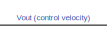
[diagram: root canvas - part 1/2, top right region]
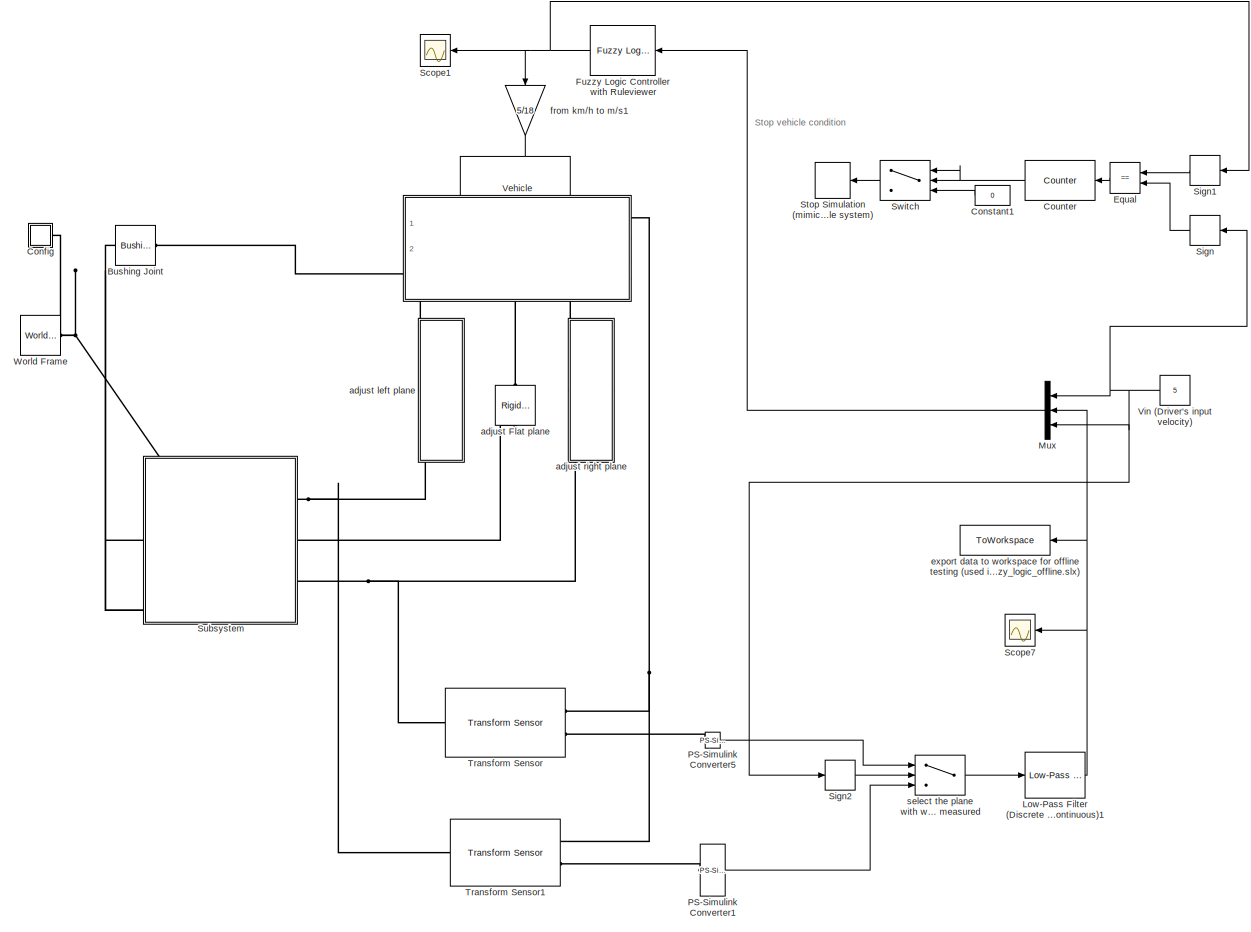
[diagram: root canvas - part 2/2, most of the canvas]
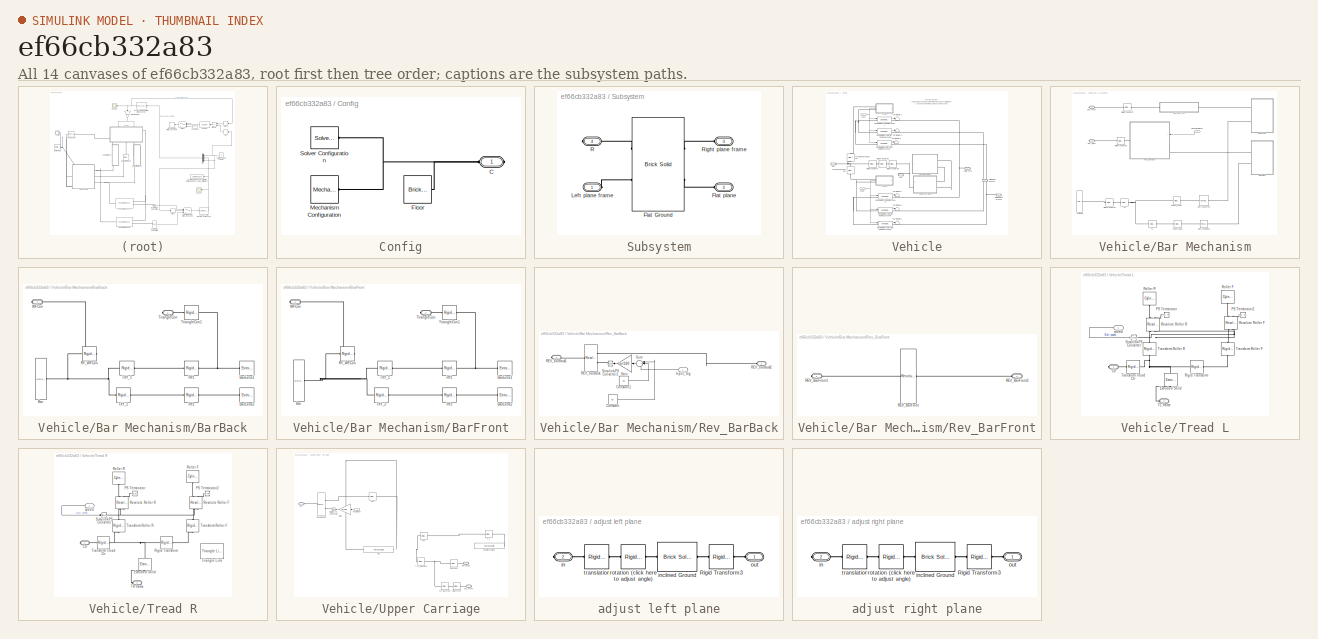
[diagram: thumbnail index - all 14 canvases of the model, root first then tree order]
MODEL slx_ef66cb332a83
KIND model
CONFIG AbsTol = auto
CONFIG EnableMultiTasking = off
CONFIG FixedStep = 0.2
CONFIG MaxStep = auto
CONFIG MinStep = auto
CONFIG PreLoadFcn = sm_tread_drive_param\n\nfuzzy
CONFIG RelTol = 1e-3
CONFIG SampleTimeConstraint = Unconstrained
CONFIG SolverName = ode23s
CONFIG StartTime = 0.0
CONFIG StopTime = 25
BLOCK [Reference] Bushing Joint  REF=sm_lib/Joints/Bushing Joint
  Ports = [0, 0, 0, 0, 0, 1, 1]
  SourceBlock = sm_lib/Joints/Bushing Joint
  SourceProductBaseCode = MS
  SourceType = Bushing Joint
BLOCK [SubSystem] Config
  NameLocation = top
  Ports = [0, 0, 0, 0, 0, 0, 1]
  RequestExecContextInheritance = off
BLOCK [PMIOPort] Config/C
  NameLocation = top
  Side = Right
BLOCK [Reference] Config/Floor  REF=sm_lib/Body Elements/Brick Solid
  Commented = on
  Ports = [0, 0, 0, 0, 0, 1, 1]
  SourceBlock = sm_lib/Body Elements/Brick Solid
  SourceProductBaseCode = MS
  SourceType = Brick Solid
BLOCK [Reference] Config/Mechanism Configuration  REF=sm_lib/Utilities/Mechanism
Configuration
  Ports = [0, 0, 0, 0, 0, 0, 1]
  SourceBlock = sm_lib/Utilities/Mechanism\nConfiguration
  SourceProductBaseCode = MS
  SourceType = Mechanism\nConfiguration
BLOCK [Reference] Config/Solver Configuration  REF=nesl_utility/Solver
Configuration
  NameLocation = top
  Ports = [0, 0, 0, 0, 0, 0, 1]
  SourceBlock = nesl_utility/Solver\nConfiguration
  SourceProductBaseCode = SS
  SourceType = Solver\nConfiguration
BLOCK [Constant] Constant1
  Value = 0
BLOCK [Reference] Counter  REF=dspswit3/Counter
  Ports = [1, 1]
  SourceBlock = dspswit3/Counter
  SourceProductBaseCode = DS
  SourceType = Counter
BLOCK [RelationalOperator] Equal
  InputSameDT = off
  Operator = ==
  OutDataTypeStr = boolean
  Ports = [2, 1]
  RndMeth = Simplest
BLOCK [Reference] Fuzzy Logic Controller with Ruleviewer  REF=fuzblock/Fuzzy Logic   (lib defined in mdl_858b3b3e7478)
Controller 
with Ruleviewer
  Ports = [1, 1]
  SourceBlock = fuzblock/Fuzzy Logic \nController \nwith Ruleviewer
  SourceProductBaseCode = FL
  SourceType = Fuzzy Inference System
BLOCK [Reference] Low-Pass Filter (Discrete or Continuous)1  REF=eeGeneralControl/Low-Pass Filter
(Discrete or Continuous)
  Ports = [1, 1]
  SourceBlock = eeGeneralControl/Low-Pass Filter\n(Discrete or Continuous)
  SourceProductBaseCode = PS
  SourceType = Low-Pass Filter (Discrete or Continuous)
BLOCK [Mux] Mux
  DisplayOption = bar
  Inputs = 3
  Ports = [3, 1]
BLOCK [Reference] PS-Simulink Converter1  REF=nesl_utility/PS-Simulink
Converter
  Ports = [0, 1, 0, 0, 0, 1]
  SourceBlock = nesl_utility/PS-Simulink\nConverter
  SourceProductBaseCode = SS
  SourceType = PS-Simulink\nConverter
BLOCK [Reference] PS-Simulink Converter5  REF=nesl_utility/PS-Simulink
Converter
  Ports = [0, 1, 0, 0, 0, 1]
  SourceBlock = nesl_utility/PS-Simulink\nConverter
  SourceProductBaseCode = SS
  SourceType = PS-Simulink\nConverter
BLOCK [Scope] Scope1
  Floating = off
  NumInputPorts = 1
  Ports = [1]
  ScopeSpecificationString = Simulink.scopes.TimeScopeBlockCfg('CurrentConfiguration', extmgr.ConfigurationSet(extmgr.Configuration('Core','General UI',true),extmgr.Configuration('Core','Source UI',true),extmgr.Configuration('Sources','WiredSimulink',true,'DataLoggingVariableName','ScopeData1'),extmgr.Configuration('Visuals','Time Domain',true,'SerializedDisplays',{struct('MinYLimReal','-5.66659','MaxYLimReal','5.66666','YLab...<+1755ch>
BLOCK [Scope] Scope7
  Floating = off
  NumInputPorts = 1
  Ports = [1]
  ScopeSpecificationString = Simulink.scopes.TimeScopeBlockCfg('CurrentConfiguration', extmgr.ConfigurationSet(extmgr.Configuration('Core','General UI',true),extmgr.Configuration('Core','Source UI',true),extmgr.Configuration('Sources','WiredSimulink',true,'DataLoggingVariableName','ScopeData6'),extmgr.Configuration('Visuals','Time Domain',true,'SerializedDisplays',{struct('MinYLimReal','-0.06153','MaxYLimReal','0.06025','YLab...<+1760ch>
BLOCK [Signum] Sign
BLOCK [Signum] Sign1
BLOCK [Signum] Sign2
BLOCK [Stop] Stop Simulation (mimics the stop//halt of the whole system)
BLOCK [SubSystem] Subsystem
  Ports = [0, 0, 0, 0, 0, 3, 1]
  RequestExecContextInheritance = off
BLOCK [Reference] Subsystem/Flat Ground  REF=sm_lib/Body Elements/Brick Solid
  NameLocation = top
  Ports = [0, 0, 0, 0, 0, 2, 2]
  SourceBlock = sm_lib/Body Elements/Brick Solid
  SourceProductBaseCode = MS
  SourceType = Brick Solid
BLOCK [PMIOPort] Subsystem/Flat plane
  Port = 2
  Side = Left
BLOCK [PMIOPort] Subsystem/Left plane frame
  Side = Left
BLOCK [PMIOPort] Subsystem/R
  Port = 4
  Side = Right
BLOCK [PMIOPort] Subsystem/Right plane frame
  Port = 3
  Side = Left
BLOCK [Switch] Switch
  Criteria = u2 > Threshold
  InputSameDT = off
  SaturateOnIntegerOverflow = off
  Threshold = 1
  ZeroCross = off
BLOCK [Reference] Transform Sensor  REF=sm_lib/Frames and
Transforms/Transform
Sensor
  Ports = [0, 0, 0, 0, 0, 1, 2]
  SourceBlock = sm_lib/Frames and\nTransforms/Transform\nSensor
  SourceProductBaseCode = MS
  SourceType = Transform\nSensor
BLOCK [Reference] Transform Sensor1  REF=sm_lib/Frames and
Transforms/Transform
Sensor
  Ports = [0, 0, 0, 0, 0, 1, 2]
  SourceBlock = sm_lib/Frames and\nTransforms/Transform\nSensor
  SourceProductBaseCode = MS
  SourceType = Transform\nSensor
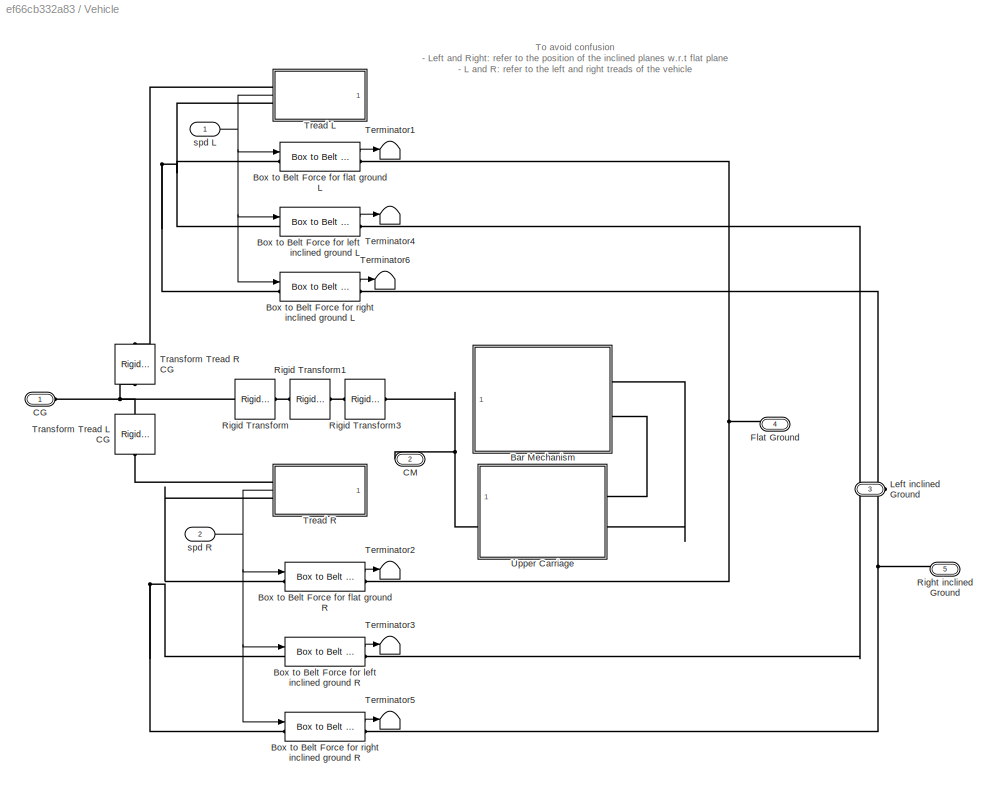
BLOCK [SubSystem] Vehicle
  NameLocation = top
  PortSchema = {"entries":[{"content":{"sides":[{"content":{"connectorIds":["LConn1"]},"type":"ConnectorPlacement.EquallySpacedRectSide","uuid":"fabd707b-f59e-4d45-9dad-4545376ba824"},{"content":{"connectorIds":["RConn1"],"side":"RIGHT"},"type":"ConnectorPlacement.EquallySpacedRectSide","uuid":"43ada801-dfb5-4da2-9ab6-aa6db2d15a3d"},{"content":{"connectorIds":["In1","In2"],"side":"TOP"},"type":"ConnectorPlacemen...<+570ch>
  Ports = [2, 0, 0, 0, 0, 1, 4]
  RequestExecContextInheritance = off
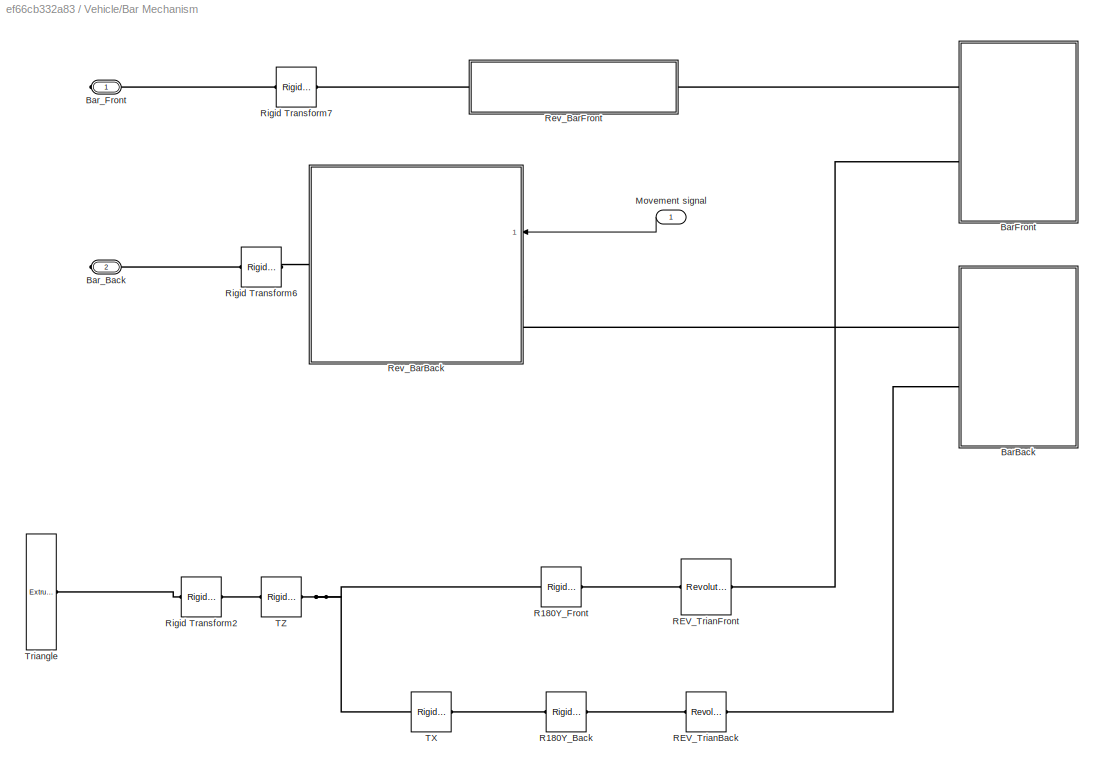
BLOCK [SubSystem] Vehicle/Bar Mechanism
  Ports = [1, 0, 0, 0, 0, 0, 2]
  RequestExecContextInheritance = off
BLOCK [SubSystem] Vehicle/Bar Mechanism/BarBack
  NameLocation = top
  Ports = [0, 0, 0, 0, 0, 0, 2]
  RequestExecContextInheritance = off
BLOCK [Reference] Vehicle/Bar Mechanism/BarBack/Bar  REF=sm_lib/Body Elements/Extruded Solid
  Ports = [0, 0, 0, 0, 0, 0, 1]
  SourceBlock = sm_lib/Body Elements/Extruded Solid
  SourceProductBaseCode = MS
  SourceType = Extruded Solid
BLOCK [Reference] Vehicle/Bar Mechanism/BarBack/BarExtra1  REF=sm_lib/Body Elements/Extruded Solid
  NameLocation = top
  Ports = [0, 0, 0, 0, 0, 0, 1]
  SourceBlock = sm_lib/Body Elements/Extruded Solid
  SourceProductBaseCode = MS
  SourceType = Extruded Solid
BLOCK [Reference] Vehicle/Bar Mechanism/BarBack/BarExtra2  REF=sm_lib/Body Elements/Extruded Solid
  NameLocation = top
  Ports = [0, 0, 0, 0, 0, 0, 1]
  SourceBlock = sm_lib/Body Elements/Extruded Solid
  SourceProductBaseCode = MS
  SourceType = Extruded Solid
BLOCK [Reference] Vehicle/Bar Mechanism/BarBack/RY1  REF=sm_lib/Frames and
Transforms/Rigid
Transform
  NameLocation = top
  Ports = [0, 0, 0, 0, 0, 1, 1]
  SourceBlock = sm_lib/Frames and\nTransforms/Rigid\nTransform
  SourceProductBaseCode = MS
  SourceType = Rigid\nTransform
BLOCK [Reference] Vehicle/Bar Mechanism/BarBack/RY2  REF=sm_lib/Frames and
Transforms/Rigid
Transform
  NameLocation = top
  Ports = [0, 0, 0, 0, 0, 1, 1]
  SourceBlock = sm_lib/Frames and\nTransforms/Rigid\nTransform
  SourceProductBaseCode = MS
  SourceType = Rigid\nTransform
BLOCK [Reference] Vehicle/Bar Mechanism/BarBack/RY_WFCon  REF=sm_lib/Frames and
Transforms/Rigid
Transform
  Ports = [0, 0, 0, 0, 0, 1, 1]
  SourceBlock = sm_lib/Frames and\nTransforms/Rigid\nTransform
  SourceProductBaseCode = MS
  SourceType = Rigid\nTransform
BLOCK [Reference] Vehicle/Bar Mechanism/BarBack/TXY_1  REF=sm_lib/Frames and
Transforms/Rigid
Transform
  Ports = [0, 0, 0, 0, 0, 1, 1]
  SourceBlock = sm_lib/Frames and\nTransforms/Rigid\nTransform
  SourceProductBaseCode = MS
  SourceType = Rigid\nTransform
BLOCK [Reference] Vehicle/Bar Mechanism/BarBack/TXY_2  REF=sm_lib/Frames and
Transforms/Rigid
Transform
  Ports = [0, 0, 0, 0, 0, 1, 1]
  SourceBlock = sm_lib/Frames and\nTransforms/Rigid\nTransform
  SourceProductBaseCode = MS
  SourceType = Rigid\nTransform
BLOCK [PMIOPort] Vehicle/Bar Mechanism/BarBack/TriangleCon
  Port = 2
  Side = Right
BLOCK [Reference] Vehicle/Bar Mechanism/BarBack/TriangleCon1  REF=sm_lib/Frames and
Transforms/Rigid
Transform
  NameLocation = top
  Ports = [0, 0, 0, 0, 0, 1, 1]
  SourceBlock = sm_lib/Frames and\nTransforms/Rigid\nTransform
  SourceProductBaseCode = MS
  SourceType = Rigid\nTransform
BLOCK [PMIOPort] Vehicle/Bar Mechanism/BarBack/WFCon
  Side = Right
BLOCK [SubSystem] Vehicle/Bar Mechanism/BarFront
  NameLocation = top
  Ports = [0, 0, 0, 0, 0, 0, 2]
  RequestExecContextInheritance = off
BLOCK [Reference] Vehicle/Bar Mechanism/BarFront/Bar  REF=sm_lib/Body Elements/Extruded Solid
  Ports = [0, 0, 0, 0, 0, 0, 1]
  SourceBlock = sm_lib/Body Elements/Extruded Solid
  SourceProductBaseCode = MS
  SourceType = Extruded Solid
BLOCK [Reference] Vehicle/Bar Mechanism/BarFront/BarExtra1  REF=sm_lib/Body Elements/Extruded Solid
  NameLocation = top
  Ports = [0, 0, 0, 0, 0, 0, 1]
  SourceBlock = sm_lib/Body Elements/Extruded Solid
  SourceProductBaseCode = MS
  SourceType = Extruded Solid
BLOCK [Reference] Vehicle/Bar Mechanism/BarFront/BarExtra2  REF=sm_lib/Body Elements/Extruded Solid
  NameLocation = top
  Ports = [0, 0, 0, 0, 0, 0, 1]
  SourceBlock = sm_lib/Body Elements/Extruded Solid
  SourceProductBaseCode = MS
  SourceType = Extruded Solid
BLOCK [Reference] Vehicle/Bar Mechanism/BarFront/RY1  REF=sm_lib/Frames and
Transforms/Rigid
Transform
  NameLocation = top
  Ports = [0, 0, 0, 0, 0, 1, 1]
  SourceBlock = sm_lib/Frames and\nTransforms/Rigid\nTransform
  SourceProductBaseCode = MS
  SourceType = Rigid\nTransform
BLOCK [Reference] Vehicle/Bar Mechanism/BarFront/RY2  REF=sm_lib/Frames and
Transforms/Rigid
Transform
  NameLocation = top
  Ports = [0, 0, 0, 0, 0, 1, 1]
  SourceBlock = sm_lib/Frames and\nTransforms/Rigid\nTransform
  SourceProductBaseCode = MS
  SourceType = Rigid\nTransform
BLOCK [Reference] Vehicle/Bar Mechanism/BarFront/RY_WFCon  REF=sm_lib/Frames and
Transforms/Rigid
Transform
  Ports = [0, 0, 0, 0, 0, 1, 1]
  SourceBlock = sm_lib/Frames and\nTransforms/Rigid\nTransform
  SourceProductBaseCode = MS
  SourceType = Rigid\nTransform
BLOCK [Reference] Vehicle/Bar Mechanism/BarFront/TXY_1  REF=sm_lib/Frames and
Transforms/Rigid
Transform
  Ports = [0, 0, 0, 0, 0, 1, 1]
  SourceBlock = sm_lib/Frames and\nTransforms/Rigid\nTransform
  SourceProductBaseCode = MS
  SourceType = Rigid\nTransform
BLOCK [Reference] Vehicle/Bar Mechanism/BarFront/TXY_2  REF=sm_lib/Frames and
Transforms/Rigid
Transform
  Ports = [0, 0, 0, 0, 0, 1, 1]
  SourceBlock = sm_lib/Frames and\nTransforms/Rigid\nTransform
  SourceProductBaseCode = MS
  SourceType = Rigid\nTransform
BLOCK [PMIOPort] Vehicle/Bar Mechanism/BarFront/TriangleCon
  Port = 2
  Side = Right
BLOCK [Reference] Vehicle/Bar Mechanism/BarFront/TriangleCon1  REF=sm_lib/Frames and
Transforms/Rigid
Transform
  NameLocation = top
  Ports = [0, 0, 0, 0, 0, 1, 1]
  SourceBlock = sm_lib/Frames and\nTransforms/Rigid\nTransform
  SourceProductBaseCode = MS
  SourceType = Rigid\nTransform
BLOCK [PMIOPort] Vehicle/Bar Mechanism/BarFront/WFCon
  Side = Right
BLOCK [PMIOPort] Vehicle/Bar Mechanism/Bar_Back
  Port = 2
  Side = Right
BLOCK [PMIOPort] Vehicle/Bar Mechanism/Bar_Front
  Side = Right
BLOCK [Inport] Vehicle/Bar Mechanism/Movement signal
BLOCK [Reference] Vehicle/Bar Mechanism/R180Y_Back  REF=sm_lib/Frames and
Transforms/Rigid
Transform
  Ports = [0, 0, 0, 0, 0, 1, 1]
  SourceBlock = sm_lib/Frames and\nTransforms/Rigid\nTransform
  SourceProductBaseCode = MS
  SourceType = Rigid\nTransform
BLOCK [Reference] Vehicle/Bar Mechanism/R180Y_Front  REF=sm_lib/Frames and
Transforms/Rigid
Transform
  Ports = [0, 0, 0, 0, 0, 1, 1]
  SourceBlock = sm_lib/Frames and\nTransforms/Rigid\nTransform
  SourceProductBaseCode = MS
  SourceType = Rigid\nTransform
BLOCK [Reference] Vehicle/Bar Mechanism/REV_TrianBack  REF=sm_lib/Joints/Revolute Joint
  Ports = [0, 0, 0, 0, 0, 1, 1]
  SourceBlock = sm_lib/Joints/Revolute Joint
  SourceProductBaseCode = MS
  SourceType = Revolute Joint
BLOCK [Reference] Vehicle/Bar Mechanism/REV_TrianFront  REF=sm_lib/Joints/Revolute Joint
  Ports = [0, 0, 0, 0, 0, 1, 1]
  SourceBlock = sm_lib/Joints/Revolute Joint
  SourceProductBaseCode = MS
  SourceType = Revolute Joint
BLOCK [SubSystem] Vehicle/Bar Mechanism/Rev_BarBack
  NameLocation = top
  Ports = [1, 0, 0, 0, 0, 1, 1]
  RequestExecContextInheritance = off
BLOCK [Constant] Vehicle/Bar Mechanism/Rev_BarBack/Constant
  Value = a0
BLOCK [Constant] Vehicle/Bar Mechanism/Rev_BarBack/Constant1
  Value = -90
BLOCK [Gain] Vehicle/Bar Mechanism/Rev_BarBack/Gain
  Gain = pi/180
  NameLocation = top
BLOCK [Inport] Vehicle/Bar Mechanism/Rev_BarBack/Input_Sig
BLOCK [Reference] Vehicle/Bar Mechanism/Rev_BarBack/REV_barBack  REF=sm_lib/Joints/Revolute Joint
  NameLocation = top
  Ports = [0, 0, 0, 0, 0, 2, 1]
  SourceBlock = sm_lib/Joints/Revolute Joint
  SourceProductBaseCode = MS
  SourceType = Revolute Joint
BLOCK [PMIOPort] Vehicle/Bar Mechanism/Rev_BarBack/REV_barBack1
  NameLocation = top
  Side = Right
BLOCK [PMIOPort] Vehicle/Bar Mechanism/Rev_BarBack/REV_barBack2
  Port = 2
  Side = Left
BLOCK [Reference] Vehicle/Bar Mechanism/Rev_BarBack/Simulink-PS Converter1  REF=nesl_utility/Simulink-PS
Converter
  NameLocation = top
  Ports = [1, 0, 0, 0, 0, 0, 1]
  SourceBlock = nesl_utility/Simulink-PS\nConverter
  SourceProductBaseCode = SS
  SourceType = Simulink-PS\nConverter
BLOCK [Sum] Vehicle/Bar Mechanism/Rev_BarBack/Sum
  Inputs = |+++
  NameLocation = top
  Ports = [3, 1]
BLOCK [SubSystem] Vehicle/Bar Mechanism/Rev_BarFront
  Ports = [0, 0, 0, 0, 0, 1, 1]
  RequestExecContextInheritance = off
BLOCK [Reference] Vehicle/Bar Mechanism/Rev_BarFront/REV_BarFront  REF=sm_lib/Joints/Revolute Joint
  NameLocation = top
  Ports = [0, 0, 0, 0, 0, 1, 1]
  SourceBlock = sm_lib/Joints/Revolute Joint
  SourceProductBaseCode = MS
  SourceType = Revolute Joint
BLOCK [PMIOPort] Vehicle/Bar Mechanism/Rev_BarFront/REV_BarFront1
  Side = Right
BLOCK [PMIOPort] Vehicle/Bar Mechanism/Rev_BarFront/REV_BarFront2
  Port = 2
  Side = Left
BLOCK [Reference] Vehicle/Bar Mechanism/Rigid Transform2  REF=sm_lib/Frames and
Transforms/Rigid
Transform
  Ports = [0, 0, 0, 0, 0, 1, 1]
  SourceBlock = sm_lib/Frames and\nTransforms/Rigid\nTransform
  SourceProductBaseCode = MS
  SourceType = Rigid\nTransform
BLOCK [Reference] Vehicle/Bar Mechanism/Rigid Transform6  REF=sm_lib/Frames and
Transforms/Rigid
Transform
  NameLocation = top
  Ports = [0, 0, 0, 0, 0, 1, 1]
  SourceBlock = sm_lib/Frames and\nTransforms/Rigid\nTransform
  SourceProductBaseCode = MS
  SourceType = Rigid\nTransform
BLOCK [Reference] Vehicle/Bar Mechanism/Rigid Transform7  REF=sm_lib/Frames and
Transforms/Rigid
Transform
  NameLocation = top
  Ports = [0, 0, 0, 0, 0, 1, 1]
  SourceBlock = sm_lib/Frames and\nTransforms/Rigid\nTransform
  SourceProductBaseCode = MS
  SourceType = Rigid\nTransform
BLOCK [Reference] Vehicle/Bar Mechanism/TX  REF=sm_lib/Frames and
Transforms/Rigid
Transform
  Ports = [0, 0, 0, 0, 0, 1, 1]
  SourceBlock = sm_lib/Frames and\nTransforms/Rigid\nTransform
  SourceProductBaseCode = MS
  SourceType = Rigid\nTransform
BLOCK [Reference] Vehicle/Bar Mechanism/TZ  REF=sm_lib/Frames and
Transforms/Rigid
Transform
  Ports = [0, 0, 0, 0, 0, 1, 1]
  SourceBlock = sm_lib/Frames and\nTransforms/Rigid\nTransform
  SourceProductBaseCode = MS
  SourceType = Rigid\nTransform
BLOCK [Reference] Vehicle/Bar Mechanism/Triangle  REF=sm_lib/Body Elements/Extruded Solid
  Ports = [0, 0, 0, 0, 0, 0, 1]
  SourceBlock = sm_lib/Body Elements/Extruded Solid
  SourceProductBaseCode = MS
  SourceType = Extruded Solid
BLOCK [Reference] Vehicle/Box to Belt Force for flat ground L  REF=Contact_Forces_Lib/2D/Composite
Forces/Box to Belt Force
  Commented = on
  Ports = [1, 1, 0, 0, 0, 1, 1]
  SourceBlock = Contact_Forces_Lib/2D/Composite\nForces/Box to Belt Force
  SourceProductName = Simscape Multibody Contact Forces Library
  SourceType = Box to Belt Contact Force
BLOCK [Reference] Vehicle/Box to Belt Force for flat ground R  REF=Contact_Forces_Lib/2D/Composite
Forces/Box to Belt Force
  Commented = on
  Ports = [1, 1, 0, 0, 0, 1, 1]
  SourceBlock = Contact_Forces_Lib/2D/Composite\nForces/Box to Belt Force
  SourceProductName = Simscape Multibody Contact Forces Library
  SourceType = Box to Belt Contact Force
BLOCK [Reference] Vehicle/Box to Belt Force for left inclined ground L  REF=Contact_Forces_Lib/2D/Composite
Forces/Box to Belt Force
  Ports = [1, 1, 0, 0, 0, 1, 1]
  SourceBlock = Contact_Forces_Lib/2D/Composite\nForces/Box to Belt Force
  SourceProductName = Simscape Multibody Contact Forces Library
  SourceType = Box to Belt Contact Force
BLOCK [Reference] Vehicle/Box to Belt Force for left inclined ground R  REF=Contact_Forces_Lib/2D/Composite
Forces/Box to Belt Force
  Ports = [1, 1, 0, 0, 0, 1, 1]
  SourceBlock = Contact_Forces_Lib/2D/Composite\nForces/Box to Belt Force
  SourceProductName = Simscape Multibody Contact Forces Library
  SourceType = Box to Belt Contact Force
BLOCK [Reference] Vehicle/Box to Belt Force for right inclined ground L  REF=Contact_Forces_Lib/2D/Composite
Forces/Box to Belt Force
  Ports = [1, 1, 0, 0, 0, 1, 1]
  SourceBlock = Contact_Forces_Lib/2D/Composite\nForces/Box to Belt Force
  SourceProductName = Simscape Multibody Contact Forces Library
  SourceType = Box to Belt Contact Force
BLOCK [Reference] Vehicle/Box to Belt Force for right inclined ground R  REF=Contact_Forces_Lib/2D/Composite
Forces/Box to Belt Force
  Ports = [1, 1, 0, 0, 0, 1, 1]
  SourceBlock = Contact_Forces_Lib/2D/Composite\nForces/Box to Belt Force
  SourceProductName = Simscape Multibody Contact Forces Library
  SourceType = Box to Belt Contact Force
BLOCK [PMIOPort] Vehicle/CG
  Side = Left
BLOCK [PMIOPort] Vehicle/CM
  NameLocation = top
  Port = 2
  Side = Right
BLOCK [PMIOPort] Vehicle/Flat Ground
  Port = 4
  Side = Right
BLOCK [PMIOPort] Vehicle/Left inclined Ground
  Port = 3
  Side = Right
BLOCK [PMIOPort] Vehicle/Right inclined Ground
  Port = 5
  Side = Right
BLOCK [Reference] Vehicle/Rigid Transform  REF=sm_lib/Frames and
Transforms/Rigid
Transform
  Ports = [0, 0, 0, 0, 0, 1, 1]
  SourceBlock = sm_lib/Frames and\nTransforms/Rigid\nTransform
  SourceProductBaseCode = MS
  SourceType = Rigid\nTransform
BLOCK [Reference] Vehicle/Rigid Transform1  REF=sm_lib/Frames and
Transforms/Rigid
Transform
  Ports = [0, 0, 0, 0, 0, 1, 1]
  SourceBlock = sm_lib/Frames and\nTransforms/Rigid\nTransform
  SourceProductBaseCode = MS
  SourceType = Rigid\nTransform
BLOCK [Reference] Vehicle/Rigid Transform3  REF=sm_lib/Frames and
Transforms/Rigid
Transform
  Ports = [0, 0, 0, 0, 0, 1, 1]
  SourceBlock = sm_lib/Frames and\nTransforms/Rigid\nTransform
  SourceProductBaseCode = MS
  SourceType = Rigid\nTransform
BLOCK [Terminator] Vehicle/Terminator1
  Commented = on
BLOCK [Terminator] Vehicle/Terminator2
  Commented = on
BLOCK [Terminator] Vehicle/Terminator3
BLOCK [Terminator] Vehicle/Terminator4
BLOCK [Terminator] Vehicle/Terminator5
BLOCK [Terminator] Vehicle/Terminator6
BLOCK [Reference] Vehicle/Transform Tread L CG  REF=sm_lib/Frames and
Transforms/Rigid
Transform
  NameLocation = left
  Ports = [0, 0, 0, 0, 0, 1, 1]
  SourceBlock = sm_lib/Frames and\nTransforms/Rigid\nTransform
  SourceProductBaseCode = MS
  SourceType = Rigid\nTransform
BLOCK [Reference] Vehicle/Transform Tread R CG  REF=sm_lib/Frames and
Transforms/Rigid
Transform
  NameLocation = left
  Ports = [0, 0, 0, 0, 0, 1, 1]
  SourceBlock = sm_lib/Frames and\nTransforms/Rigid\nTransform
  SourceProductBaseCode = MS
  SourceType = Rigid\nTransform
BLOCK [SubSystem] Vehicle/Tread L
  PortSchema = {"entries":[{"content":{"sides":[{"content":{"connectorIds":[]},"type":"ConnectorPlacement.EquallySpacedRectSide","uuid":"71f54ac7-1acd-4494-b2ba-36120ebb2448"},{"content":{"connectorIds":["RConn1","RConn2","In1"],"side":"RIGHT"},"type":"ConnectorPlacement.EquallySpacedRectSide","uuid":"abfaafc8-7934-4bf8-9c1d-7af05f31c6a7"},{"content":{"connectorIds":[],"side":"TOP"},"type":"ConnectorPlacement.Eq...<+540ch>
  Ports = [1, 0, 0, 0, 0, 0, 2]
  RequestExecContextInheritance = off
BLOCK [PMIOPort] Vehicle/Tread L/Ctr
  Side = Right
BLOCK [Reference] Vehicle/Tread L/Extruded Solid  REF=sm_lib/Body Elements/Extruded Solid
  NameLocation = right
  Ports = [0, 0, 0, 0, 0, 1, 1]
  SourceBlock = sm_lib/Body Elements/Extruded Solid
  SourceProductBaseCode = MS
  SourceType = Extruded Solid
BLOCK [Reference] Vehicle/Tread L/PS Terminator  REF=fl_lib/Physical Signals/Sinks/PS Terminator
  Ports = [0, 0, 0, 0, 0, 1]
  SourceBlock = fl_lib/Physical Signals/Sinks/PS Terminator
  SourceProductBaseCode = SS
  SourceType = PS Terminator
BLOCK [Reference] Vehicle/Tread L/PS Terminator2  REF=fl_lib/Physical Signals/Sinks/PS Terminator
  Ports = [0, 0, 0, 0, 0, 1]
  SourceBlock = fl_lib/Physical Signals/Sinks/PS Terminator
  SourceProductBaseCode = SS
  SourceType = PS Terminator
BLOCK [Reference] Vehicle/Tread L/Revolute Roller F  REF=sm_lib/Joints/Revolute Joint
  NameLocation = right
  Ports = [0, 0, 0, 0, 0, 2, 2]
  SourceBlock = sm_lib/Joints/Revolute Joint
  SourceProductBaseCode = MS
  SourceType = Revolute Joint
BLOCK [Reference] Vehicle/Tread L/Revolute Roller R  REF=sm_lib/Joints/Revolute Joint
  NameLocation = right
  Ports = [0, 0, 0, 0, 0, 2, 2]
  SourceBlock = sm_lib/Joints/Revolute Joint
  SourceProductBaseCode = MS
  SourceType = Revolute Joint
BLOCK [Reference] Vehicle/Tread L/Rigid Transform  REF=sm_lib/Frames and
Transforms/Rigid
Transform
  Ports = [0, 0, 0, 0, 0, 1, 1]
  SourceBlock = sm_lib/Frames and\nTransforms/Rigid\nTransform
  SourceProductBaseCode = MS
  SourceType = Rigid\nTransform
BLOCK [Reference] Vehicle/Tread L/Roller F  REF=Parts_Lib/Cylinder
  NameLocation = right
  Ports = [0, 0, 0, 0, 0, 1]
  SourceBlock = Parts_Lib/Cylinder
  SourceType = Solid Cylinder with Markings
  Tag = CustomStyle
BLOCK [Reference] Vehicle/Tread L/Roller R  REF=Parts_Lib/Cylinder
  NameLocation = right
  Ports = [0, 0, 0, 0, 0, 1]
  SourceBlock = Parts_Lib/Cylinder
  SourceType = Solid Cylinder with Markings
  Tag = CustomStyle
BLOCK [Reference] Vehicle/Tread L/Simulink-PS Converter  REF=nesl_utility/Simulink-PS
Converter
  Ports = [1, 0, 0, 0, 0, 0, 1]
  SourceBlock = nesl_utility/Simulink-PS\nConverter
  SourceProductBaseCode = SS
  SourceType = Simulink-PS\nConverter
BLOCK [PMIOPort] Vehicle/Tread L/TL frame
  Port = 2
  Side = Right
BLOCK [Reference] Vehicle/Tread L/Transform Roller F  REF=sm_lib/Frames and
Transforms/Rigid
Transform
  NameLocation = right
  Ports = [0, 0, 0, 0, 0, 1, 1]
  SourceBlock = sm_lib/Frames and\nTransforms/Rigid\nTransform
  SourceProductBaseCode = MS
  SourceType = Rigid\nTransform
BLOCK [Reference] Vehicle/Tread L/Transform Roller R  REF=sm_lib/Frames and
Transforms/Rigid
Transform
  NameLocation = right
  Ports = [0, 0, 0, 0, 0, 1, 1]
  SourceBlock = sm_lib/Frames and\nTransforms/Rigid\nTransform
  SourceProductBaseCode = MS
  SourceType = Rigid\nTransform
BLOCK [Reference] Vehicle/Tread L/Transform Tread Ctr  REF=sm_lib/Frames and
Transforms/Rigid
Transform
  Ports = [0, 0, 0, 0, 0, 1, 1]
  SourceBlock = sm_lib/Frames and\nTransforms/Rigid\nTransform
  SourceProductBaseCode = MS
  SourceType = Rigid\nTransform
BLOCK [Inport] Vehicle/Tread L/speed
BLOCK [SubSystem] Vehicle/Tread R
  PortSchema = {"entries":[{"content":{"sides":[{"content":{"connectorIds":[]},"type":"ConnectorPlacement.EquallySpacedRectSide","uuid":"71f54ac7-1acd-4494-b2ba-36120ebb2448"},{"content":{"connectorIds":["RConn1","RConn2","In1"],"side":"RIGHT"},"type":"ConnectorPlacement.EquallySpacedRectSide","uuid":"abfaafc8-7934-4bf8-9c1d-7af05f31c6a7"},{"content":{"connectorIds":[],"side":"TOP"},"type":"ConnectorPlacement.Eq...<+396ch>
  Ports = [1, 0, 0, 0, 0, 0, 2]
  RequestExecContextInheritance = off
BLOCK [PMIOPort] Vehicle/Tread R/Ctr
  Side = Right
BLOCK [Reference] Vehicle/Tread R/Extruded Solid  REF=sm_lib/Body Elements/Extruded Solid
  NameLocation = right
  Ports = [0, 0, 0, 0, 0, 1, 1]
  SourceBlock = sm_lib/Body Elements/Extruded Solid
  SourceProductBaseCode = MS
  SourceType = Extruded Solid
BLOCK [Reference] Vehicle/Tread R/PS Terminator  REF=fl_lib/Physical Signals/Sinks/PS Terminator
  Ports = [0, 0, 0, 0, 0, 1]
  SourceBlock = fl_lib/Physical Signals/Sinks/PS Terminator
  SourceProductBaseCode = SS
  SourceType = PS Terminator
BLOCK [Reference] Vehicle/Tread R/PS Terminator2  REF=fl_lib/Physical Signals/Sinks/PS Terminator
  Ports = [0, 0, 0, 0, 0, 1]
  SourceBlock = fl_lib/Physical Signals/Sinks/PS Terminator
  SourceProductBaseCode = SS
  SourceType = PS Terminator
BLOCK [Reference] Vehicle/Tread R/Revolute Roller F  REF=sm_lib/Joints/Revolute Joint
  NameLocation = right
  Ports = [0, 0, 0, 0, 0, 2, 2]
  SourceBlock = sm_lib/Joints/Revolute Joint
  SourceProductBaseCode = MS
  SourceType = Revolute Joint
BLOCK [Reference] Vehicle/Tread R/Revolute Roller R  REF=sm_lib/Joints/Revolute Joint
  NameLocation = right
  Ports = [0, 0, 0, 0, 0, 2, 2]
  SourceBlock = sm_lib/Joints/Revolute Joint
  SourceProductBaseCode = MS
  SourceType = Revolute Joint
BLOCK [Reference] Vehicle/Tread R/Rigid Transform  REF=sm_lib/Frames and
Transforms/Rigid
Transform
  Ports = [0, 0, 0, 0, 0, 1, 1]
  SourceBlock = sm_lib/Frames and\nTransforms/Rigid\nTransform
  SourceProductBaseCode = MS
  SourceType = Rigid\nTransform
BLOCK [Reference] Vehicle/Tread R/Roller F  REF=Parts_Lib/Cylinder
  NameLocation = right
  Ports = [0, 0, 0, 0, 0, 1]
  SourceBlock = Parts_Lib/Cylinder
  SourceType = Solid Cylinder with Markings
  Tag = CustomStyle
BLOCK [Reference] Vehicle/Tread R/Roller R  REF=Parts_Lib/Cylinder
  NameLocation = right
  Ports = [0, 0, 0, 0, 0, 1]
  SourceBlock = Parts_Lib/Cylinder
  SourceType = Solid Cylinder with Markings
  Tag = CustomStyle
BLOCK [Reference] Vehicle/Tread R/Simulink-PS Converter  REF=nesl_utility/Simulink-PS
Converter
  Ports = [1, 0, 0, 0, 0, 0, 1]
  SourceBlock = nesl_utility/Simulink-PS\nConverter
  SourceProductBaseCode = SS
  SourceType = Simulink-PS\nConverter
BLOCK [PMIOPort] Vehicle/Tread R/TR frame
  Port = 2
  Side = Right
BLOCK [Reference] Vehicle/Tread R/Transform Roller F  REF=sm_lib/Frames and
Transforms/Rigid
Transform
  NameLocation = right
  Ports = [0, 0, 0, 0, 0, 1, 1]
  SourceBlock = sm_lib/Frames and\nTransforms/Rigid\nTransform
  SourceProductBaseCode = MS
  SourceType = Rigid\nTransform
BLOCK [Reference] Vehicle/Tread R/Transform Roller R  REF=sm_lib/Frames and
Transforms/Rigid
Transform
  NameLocation = right
  Ports = [0, 0, 0, 0, 0, 1, 1]
  SourceBlock = sm_lib/Frames and\nTransforms/Rigid\nTransform
  SourceProductBaseCode = MS
  SourceType = Rigid\nTransform
BLOCK [Reference] Vehicle/Tread R/Transform Tread Ctr  REF=sm_lib/Frames and
Transforms/Rigid
Transform
  Ports = [0, 0, 0, 0, 0, 1, 1]
  SourceBlock = sm_lib/Frames and\nTransforms/Rigid\nTransform
  SourceProductBaseCode = MS
  SourceType = Rigid\nTransform
BLOCK [Reference] Vehicle/Tread R/Triangle Link  REF=Parts_Lib/Triangle Link
  Commented = on
  Ports = [0, 0, 0, 0, 0, 1, 2]
  SourceBlock = Parts_Lib/Triangle Link
  SourceType = Triangular Link with Rounded Corners
BLOCK [Inport] Vehicle/Tread R/speed
BLOCK [SubSystem] Vehicle/Upper Carriage
  Ports = [1, 0, 0, 0, 0, 1, 2]
  RequestExecContextInheritance = off
BLOCK [PMIOPort] Vehicle/Upper Carriage/Bar_Back
  Port = 2
  Side = Right
BLOCK [PMIOPort] Vehicle/Upper Carriage/Bar_Front
  Port = 3
  Side = Right
BLOCK [Reference] Vehicle/Upper Carriage/Car  REF=sm_lib/Body Elements/Extruded Solid
  Ports = [0, 0, 0, 0, 0, 0, 1]
  SourceBlock = sm_lib/Body Elements/Extruded Solid
  SourceProductBaseCode = MS
  SourceType = Extruded Solid
BLOCK [Reference] Vehicle/Upper Carriage/CounterWeight  REF=sm_lib/Body Elements/Extruded Solid
  Ports = [0, 0, 0, 0, 0, 0, 1]
  SourceBlock = sm_lib/Body Elements/Extruded Solid
  SourceProductBaseCode = MS
  SourceType = Extruded Solid
BLOCK [Gain] Vehicle/Upper Carriage/Gain
  Gain = pi/180
  NameLocation = top
BLOCK [Inport] Vehicle/Upper Carriage/Input signal
  NameLocation = top
BLOCK [Reference] Vehicle/Upper Carriage/RBarBack  REF=sm_lib/Frames and
Transforms/Rigid
Transform
  Ports = [0, 0, 0, 0, 0, 1, 1]
  SourceBlock = sm_lib/Frames and\nTransforms/Rigid\nTransform
  SourceProductBaseCode = MS
  SourceType = Rigid\nTransform
BLOCK [Reference] Vehicle/Upper Carriage/RBarFront  REF=sm_lib/Frames and
Transforms/Rigid
Transform
  Ports = [0, 0, 0, 0, 0, 1, 1]
  SourceBlock = sm_lib/Frames and\nTransforms/Rigid\nTransform
  SourceProductBaseCode = MS
  SourceType = Rigid\nTransform
BLOCK [Reference] Vehicle/Upper Carriage/Revolute Joint  REF=sm_lib/Joints/Revolute Joint
  NameLocation = top
  Ports = [0, 0, 0, 0, 0, 2, 1]
  SourceBlock = sm_lib/Joints/Revolute Joint
  SourceProductBaseCode = MS
  SourceType = Revolute Joint
BLOCK [Reference] Vehicle/Upper Carriage/Simulink-PS Converter  REF=nesl_utility/Simulink-PS
Converter
  NameLocation = top
  Ports = [1, 0, 0, 0, 0, 0, 1]
  SourceBlock = nesl_utility/Simulink-PS\nConverter
  SourceProductBaseCode = SS
  SourceType = Simulink-PS\nConverter
BLOCK [Reference] Vehicle/Upper Carriage/T-X  REF=sm_lib/Frames and
Transforms/Rigid
Transform
  NameLocation = top
  Ports = [0, 0, 0, 0, 0, 1, 1]
  SourceBlock = sm_lib/Frames and\nTransforms/Rigid\nTransform
  SourceProductBaseCode = MS
  SourceType = Rigid\nTransform
BLOCK [Reference] Vehicle/Upper Carriage/T-XY_BarBack  REF=sm_lib/Frames and
Transforms/Rigid
Transform
  Ports = [0, 0, 0, 0, 0, 1, 1]
  SourceBlock = sm_lib/Frames and\nTransforms/Rigid\nTransform
  SourceProductBaseCode = MS
  SourceType = Rigid\nTransform
BLOCK [Reference] Vehicle/Upper Carriage/TUC  REF=sm_lib/Frames and
Transforms/Rigid
Transform
  NameLocation = top
  Ports = [0, 0, 0, 0, 0, 1, 1]
  SourceBlock = sm_lib/Frames and\nTransforms/Rigid\nTransform
  SourceProductBaseCode = MS
  SourceType = Rigid\nTransform
BLOCK [Reference] Vehicle/Upper Carriage/TXY  REF=sm_lib/Frames and
Transforms/Rigid
Transform
  Ports = [0, 0, 0, 0, 0, 1, 1]
  SourceBlock = sm_lib/Frames and\nTransforms/Rigid\nTransform
  SourceProductBaseCode = MS
  SourceType = Rigid\nTransform
BLOCK [Reference] Vehicle/Upper Carriage/TXY_BarFront  REF=sm_lib/Frames and
Transforms/Rigid
Transform
  Ports = [0, 0, 0, 0, 0, 1, 1]
  SourceBlock = sm_lib/Frames and\nTransforms/Rigid\nTransform
  SourceProductBaseCode = MS
  SourceType = Rigid\nTransform
BLOCK [PMIOPort] Vehicle/Upper Carriage/UC
  Side = Left
BLOCK [Inport] Vehicle/spd L
  NameLocation = top
BLOCK [Inport] Vehicle/spd R
  NameLocation = top
  Port = 2
BLOCK [Constant] Vin (Driver's input velocity)
  Value = 5
BLOCK [Reference] World Frame  REF=sm_lib/Frames and
Transforms/World Frame
  Ports = [0, 0, 0, 0, 0, 0, 1]
  SourceBlock = sm_lib/Frames and\nTransforms/World Frame
  SourceProductBaseCode = MS
  SourceType = World Frame
BLOCK [Reference] adjust Flat plane  REF=sm_lib/Frames and
Transforms/Rigid
Transform
  Ports = [0, 0, 0, 0, 0, 1, 1]
  SourceBlock = sm_lib/Frames and\nTransforms/Rigid\nTransform
  SourceProductBaseCode = MS
  SourceType = Rigid\nTransform
BLOCK [SubSystem] adjust left plane
  PortSchema = {"entries":[{"content":{"sides":[{"content":{"connectorIds":[]},"type":"ConnectorPlacement.EquallySpacedRectSide","uuid":"5a52d3ef-8c7d-4b27-92b4-2598d60e8078"},{"content":{"connectorIds":[],"side":"RIGHT"},"type":"ConnectorPlacement.EquallySpacedRectSide","uuid":"b8857e3b-9921-4182-868b-79d7343a5054"},{"content":{"connectorIds":["LConn1"],"side":"TOP"},"type":"ConnectorPlacement.EquallySpacedRect...<+533ch>
  Ports = [0, 0, 0, 0, 0, 1, 1]
  RequestExecContextInheritance = off
BLOCK [Reference] adjust left plane/Rigid Transform3  REF=sm_lib/Frames and
Transforms/Rigid
Transform
  NameLocation = top
  Ports = [0, 0, 0, 0, 0, 1, 1]
  SourceBlock = sm_lib/Frames and\nTransforms/Rigid\nTransform
  SourceProductBaseCode = MS
  SourceType = Rigid\nTransform
BLOCK [PMIOPort] adjust left plane/in
  Port = 2
  Side = Right
BLOCK [Reference] adjust left plane/inclined Ground  REF=sm_lib/Body Elements/Brick Solid
  NameLocation = top
  Ports = [0, 0, 0, 0, 0, 1, 1]
  SourceBlock = sm_lib/Body Elements/Brick Solid
  SourceProductBaseCode = MS
  SourceType = Brick Solid
BLOCK [PMIOPort] adjust left plane/out
  Side = Left
BLOCK [Reference] adjust left plane/rotation (click here to adjust angle)  REF=sm_lib/Frames and
Transforms/Rigid
Transform
  Ports = [0, 0, 0, 0, 0, 1, 1]
  SourceBlock = sm_lib/Frames and\nTransforms/Rigid\nTransform
  SourceProductBaseCode = MS
  SourceType = Rigid\nTransform
BLOCK [Reference] adjust left plane/translation  REF=sm_lib/Frames and
Transforms/Rigid
Transform
  NameLocation = top
  Ports = [0, 0, 0, 0, 0, 1, 1]
  SourceBlock = sm_lib/Frames and\nTransforms/Rigid\nTransform
  SourceProductBaseCode = MS
  SourceType = Rigid\nTransform
BLOCK [SubSystem] adjust right plane
  PortSchema = {"entries":[{"content":{"sides":[{"content":{"connectorIds":[]},"type":"ConnectorPlacement.EquallySpacedRectSide","uuid":"5a52d3ef-8c7d-4b27-92b4-2598d60e8078"},{"content":{"connectorIds":[],"side":"RIGHT"},"type":"ConnectorPlacement.EquallySpacedRectSide","uuid":"b8857e3b-9921-4182-868b-79d7343a5054"},{"content":{"connectorIds":["LConn1"],"side":"TOP"},"type":"ConnectorPlacement.EquallySpacedRect...<+533ch>
  Ports = [0, 0, 0, 0, 0, 1, 1]
  RequestExecContextInheritance = off
BLOCK [Reference] adjust right plane/Rigid Transform3  REF=sm_lib/Frames and
Transforms/Rigid
Transform
  NameLocation = top
  Ports = [0, 0, 0, 0, 0, 1, 1]
  SourceBlock = sm_lib/Frames and\nTransforms/Rigid\nTransform
  SourceProductBaseCode = MS
  SourceType = Rigid\nTransform
BLOCK [PMIOPort] adjust right plane/in
  Port = 2
  Side = Right
BLOCK [Reference] adjust right plane/inclined Ground  REF=sm_lib/Body Elements/Brick Solid
  NameLocation = top
  Ports = [0, 0, 0, 0, 0, 1, 1]
  SourceBlock = sm_lib/Body Elements/Brick Solid
  SourceProductBaseCode = MS
  SourceType = Brick Solid
BLOCK [PMIOPort] adjust right plane/out
  Side = Left
BLOCK [Reference] adjust right plane/rotation (click here to adjust angle)  REF=sm_lib/Frames and
Transforms/Rigid
Transform
  Ports = [0, 0, 0, 0, 0, 1, 1]
  SourceBlock = sm_lib/Frames and\nTransforms/Rigid\nTransform
  SourceProductBaseCode = MS
  SourceType = Rigid\nTransform
BLOCK [Reference] adjust right plane/translation  REF=sm_lib/Frames and
Transforms/Rigid
Transform
  NameLocation = top
  Ports = [0, 0, 0, 0, 0, 1, 1]
  SourceBlock = sm_lib/Frames and\nTransforms/Rigid\nTransform
  SourceProductBaseCode = MS
  SourceType = Rigid\nTransform
BLOCK [ToWorkspace] export data to workspace for offline testing (used in Test_fuzzy_logic_offline.slx)
  FixptAsFi = on
  MaxDataPoints = inf
  Ports = [1]
  SampleTime = 0.2
  SaveFormat = Timeseries
  VariableName = theta_dot
BLOCK [Gain] from km//h to m//s1
  Gain = 5/18
  NameLocation = left
BLOCK [Switch] select the plane with which the rotation is measured
  Criteria = u2 > Threshold
  InputSameDT = off
  SaturateOnIntegerOverflow = off
ANNOTATION (root): Stop vehicle condition
ANNOTATION Vehicle: To avoid confusion - Left and Right: refer to the position of the inclined planes w.r.t flat plane - L and R : refer to the left and right treads of the vehicle
LINE Constant1:1 -> Switch:3
NET Counter:1 -> Switch:1, Switch:2
LINE Equal:1 -> Counter:1
NET Fuzzy Logic Controller with Ruleviewer:1 -> Scope1:1, Sign1:1, from km//h to m//s1:1
NET Low-Pass Filter (Discrete or Continuous)1:1 -> Mux:2, Scope7:1, export data to workspace for offline testing (used in Test_fuzzy_logic_offline.slx):1
LINE Mux:1 -> Fuzzy Logic Controller with Ruleviewer:1
LINE PS-Simulink Converter1:1 -> select the plane with which the rotation is measured:3
LINE PS-Simulink Converter5:1 -> select the plane with which the rotation is measured:1
LINE Sign1:1 -> Equal:1
LINE Sign2:1 -> select the plane with which the rotation is measured:2
LINE Sign:1 -> Equal:2
LINE Switch:1 -> Stop Simulation (mimics the stop//halt of the whole system):1
LINE Vehicle/Bar Mechanism/Movement signal:1 -> Vehicle/Bar Mechanism/Rev_BarBack:1
LINE Vehicle/Bar Mechanism/Rev_BarBack/Constant1:1 -> Vehicle/Bar Mechanism/Rev_BarBack/Sum:2
LINE Vehicle/Bar Mechanism/Rev_BarBack/Constant:1 -> Vehicle/Bar Mechanism/Rev_BarBack/Sum:1
LINE Vehicle/Bar Mechanism/Rev_BarBack/Gain:1 -> Vehicle/Bar Mechanism/Rev_BarBack/Simulink-PS Converter1:1
LINE Vehicle/Bar Mechanism/Rev_BarBack/Input_Sig:1 -> Vehicle/Bar Mechanism/Rev_BarBack/Sum:3
LINE Vehicle/Bar Mechanism/Rev_BarBack/Sum:1 -> Vehicle/Bar Mechanism/Rev_BarBack/Gain:1
LINE Vehicle/Box to Belt Force for flat ground L:1 -> Vehicle/Terminator1:1
LINE Vehicle/Box to Belt Force for flat ground R:1 -> Vehicle/Terminator2:1
LINE Vehicle/Box to Belt Force for left inclined ground L:1 -> Vehicle/Terminator4:1
LINE Vehicle/Box to Belt Force for left inclined ground R:1 -> Vehicle/Terminator3:1
LINE Vehicle/Box to Belt Force for right inclined ground L:1 -> Vehicle/Terminator6:1
LINE Vehicle/Box to Belt Force for right inclined ground R:1 -> Vehicle/Terminator5:1
LINE Vehicle/Tread L/speed:1 -> Vehicle/Tread L/Simulink-PS Converter:1
LINE Vehicle/Tread R/speed:1 -> Vehicle/Tread R/Simulink-PS Converter:1
LINE Vehicle/Upper Carriage/Gain:1 -> Vehicle/Upper Carriage/Simulink-PS Converter:1
LINE Vehicle/Upper Carriage/Input signal:1 -> Vehicle/Upper Carriage/Gain:1
NET Vehicle/spd L:1 -> Vehicle/Box to Belt Force for flat ground L:1, Vehicle/Box to Belt Force for left inclined ground L:1, Vehicle/Box to Belt Force for right inclined ground L:1, Vehicle/Tread L:1
NET Vehicle/spd R:1 -> Vehicle/Box to Belt Force for flat ground R:1, Vehicle/Box to Belt Force for left inclined ground R:1, Vehicle/Box to Belt Force for right inclined ground R:1, Vehicle/Tread R:1
NET Vin (Driver's input velocity):1 -> Mux:1, Mux:3, Sign2:1, Sign:1
NET from km//h to m//s1:1 -> Vehicle:1, Vehicle:2
LINE select the plane with which the rotation is measured:1 -> Low-Pass Filter (Discrete or Continuous)1:1
PNET net1: Bushing Joint:LConn1 -- Config:RConn1 -- Subsystem:RConn1 -- World Frame:RConn1
PLINE Bushing Joint:RConn1 -- Vehicle:LConn1
PNET net2: Config/C:RConn1 -- Config/Floor:LConn1 -- Config/Mechanism Configuration:RConn1 -- Config/Solver Configuration:RConn1
PLINE PS-Simulink Converter1:LConn1 -- Transform Sensor1:RConn2
PLINE PS-Simulink Converter5:LConn1 -- Transform Sensor:RConn2
PLINE Subsystem/Flat Ground:LConn1 -- Subsystem/Right plane frame:RConn1
PLINE Subsystem/Flat Ground:LConn2 -- Subsystem/Flat plane:RConn1
PLINE Subsystem/Flat Ground:RConn1 -- Subsystem/R:RConn1
PLINE Subsystem/Flat Ground:RConn2 -- Subsystem/Left plane frame:RConn1
PNET net3: Subsystem:LConn1 -- Transform Sensor1:LConn1 -- adjust left plane:RConn1
PLINE Subsystem:LConn2 -- adjust Flat plane:RConn1
PNET net4: Subsystem:LConn3 -- Transform Sensor:LConn1 -- adjust right plane:RConn1
PNET net5: Transform Sensor1:RConn1 -- Transform Sensor:RConn1 -- Vehicle:RConn1
PNET net6: Vehicle/Bar Mechanism/BarBack/Bar:RConn1 -- Vehicle/Bar Mechanism/BarBack/RY_WFCon:LConn1 -- Vehicle/Bar Mechanism/BarBack/TXY_1:LConn1 -- Vehicle/Bar Mechanism/BarBack/TXY_2:LConn1
PNET net7: Vehicle/Bar Mechanism/BarBack/BarExtra1:RConn1 -- Vehicle/Bar Mechanism/BarBack/RY1:LConn1 -- Vehicle/Bar Mechanism/BarBack/TriangleCon1:LConn1
PLINE Vehicle/Bar Mechanism/BarBack/BarExtra2:RConn1 -- Vehicle/Bar Mechanism/BarBack/RY2:LConn1
PLINE Vehicle/Bar Mechanism/BarBack/RY1:RConn1 -- Vehicle/Bar Mechanism/BarBack/TXY_1:RConn1
PLINE Vehicle/Bar Mechanism/BarBack/RY2:RConn1 -- Vehicle/Bar Mechanism/BarBack/TXY_2:RConn1
PLINE Vehicle/Bar Mechanism/BarBack/RY_WFCon:RConn1 -- Vehicle/Bar Mechanism/BarBack/WFCon:RConn1
PLINE Vehicle/Bar Mechanism/BarBack/TriangleCon1:RConn1 -- Vehicle/Bar Mechanism/BarBack/TriangleCon:RConn1
PLINE Vehicle/Bar Mechanism/BarBack:RConn1 -- Vehicle/Bar Mechanism/Rev_BarBack:LConn1
PLINE Vehicle/Bar Mechanism/BarBack:RConn2 -- Vehicle/Bar Mechanism/REV_TrianBack:RConn1
PNET net8: Vehicle/Bar Mechanism/BarFront/Bar:RConn1 -- Vehicle/Bar Mechanism/BarFront/RY_WFCon:LConn1 -- Vehicle/Bar Mechanism/BarFront/TXY_1:LConn1 -- Vehicle/Bar Mechanism/BarFront/TXY_2:LConn1
PNET net9: Vehicle/Bar Mechanism/BarFront/BarExtra1:RConn1 -- Vehicle/Bar Mechanism/BarFront/RY1:LConn1 -- Vehicle/Bar Mechanism/BarFront/TriangleCon1:LConn1
PLINE Vehicle/Bar Mechanism/BarFront/BarExtra2:RConn1 -- Vehicle/Bar Mechanism/BarFront/RY2:LConn1
PLINE Vehicle/Bar Mechanism/BarFront/RY1:RConn1 -- Vehicle/Bar Mechanism/BarFront/TXY_1:RConn1
PLINE Vehicle/Bar Mechanism/BarFront/RY2:RConn1 -- Vehicle/Bar Mechanism/BarFront/TXY_2:RConn1
PLINE Vehicle/Bar Mechanism/BarFront/RY_WFCon:RConn1 -- Vehicle/Bar Mechanism/BarFront/WFCon:RConn1
PLINE Vehicle/Bar Mechanism/BarFront/TriangleCon1:RConn1 -- Vehicle/Bar Mechanism/BarFront/TriangleCon:RConn1
PLINE Vehicle/Bar Mechanism/BarFront:RConn1 -- Vehicle/Bar Mechanism/Rev_BarFront:LConn1
PLINE Vehicle/Bar Mechanism/BarFront:RConn2 -- Vehicle/Bar Mechanism/REV_TrianFront:RConn1
PLINE Vehicle/Bar Mechanism/Bar_Back:RConn1 -- Vehicle/Bar Mechanism/Rigid Transform6:RConn1
PLINE Vehicle/Bar Mechanism/Bar_Front:RConn1 -- Vehicle/Bar Mechanism/Rigid Transform7:RConn1
PLINE Vehicle/Bar Mechanism/R180Y_Back:LConn1 -- Vehicle/Bar Mechanism/TX:RConn1
PLINE Vehicle/Bar Mechanism/R180Y_Back:RConn1 -- Vehicle/Bar Mechanism/REV_TrianBack:LConn1
PNET net10: Vehicle/Bar Mechanism/R180Y_Front:LConn1 -- Vehicle/Bar Mechanism/TX:LConn1 -- Vehicle/Bar Mechanism/TZ:RConn1
PLINE Vehicle/Bar Mechanism/R180Y_Front:RConn1 -- Vehicle/Bar Mechanism/REV_TrianFront:LConn1
PLINE Vehicle/Bar Mechanism/Rev_BarBack/REV_barBack1:RConn1 -- Vehicle/Bar Mechanism/Rev_BarBack/REV_barBack:RConn1
PLINE Vehicle/Bar Mechanism/Rev_BarBack/REV_barBack2:RConn1 -- Vehicle/Bar Mechanism/Rev_BarBack/REV_barBack:LConn1
PLINE Vehicle/Bar Mechanism/Rev_BarBack/REV_barBack:LConn2 -- Vehicle/Bar Mechanism/Rev_BarBack/Simulink-PS Converter1:RConn1
PLINE Vehicle/Bar Mechanism/Rev_BarBack:RConn1 -- Vehicle/Bar Mechanism/Rigid Transform6:LConn1
PLINE Vehicle/Bar Mechanism/Rev_BarFront/REV_BarFront1:RConn1 -- Vehicle/Bar Mechanism/Rev_BarFront/REV_BarFront:RConn1
PLINE Vehicle/Bar Mechanism/Rev_BarFront/REV_BarFront2:RConn1 -- Vehicle/Bar Mechanism/Rev_BarFront/REV_BarFront:LConn1
PLINE Vehicle/Bar Mechanism/Rev_BarFront:RConn1 -- Vehicle/Bar Mechanism/Rigid Transform7:LConn1
PLINE Vehicle/Bar Mechanism/Rigid Transform2:LConn1 -- Vehicle/Bar Mechanism/Triangle:RConn1
PLINE Vehicle/Bar Mechanism/Rigid Transform2:RConn1 -- Vehicle/Bar Mechanism/TZ:LConn1
PLINE Vehicle/Bar Mechanism:RConn1 -- Vehicle/Upper Carriage:RConn2
PLINE Vehicle/Bar Mechanism:RConn2 -- Vehicle/Upper Carriage:RConn1
PNET net11: Vehicle/Box to Belt Force for flat ground L:LConn1 -- Vehicle/Box to Belt Force for left inclined ground L:LConn1 -- Vehicle/Box to Belt Force for right inclined ground L:LConn1 -- Vehicle/Tread L:RConn2
PNET net12: Vehicle/Box to Belt Force for flat ground L:RConn1 -- Vehicle/Box to Belt Force for flat ground R:RConn1 -- Vehicle/Flat Ground:RConn1
PNET net13: Vehicle/Box to Belt Force for flat ground R:LConn1 -- Vehicle/Box to Belt Force for left inclined ground R:LConn1 -- Vehicle/Box to Belt Force for right inclined ground R:LConn1 -- Vehicle/Tread R:RConn2
PNET net14: Vehicle/Box to Belt Force for left inclined ground L:RConn1 -- Vehicle/Box to Belt Force for left inclined ground R:RConn1 -- Vehicle/Left inclined Ground:RConn1
PNET net15: Vehicle/Box to Belt Force for right inclined ground L:RConn1 -- Vehicle/Box to Belt Force for right inclined ground R:RConn1 -- Vehicle/Right inclined Ground:RConn1
PNET net16: Vehicle/CG:RConn1 -- Vehicle/Rigid Transform:RConn1 -- Vehicle/Transform Tread L CG:LConn1 -- Vehicle/Transform Tread R CG:RConn1
PNET net17: Vehicle/CM:RConn1 -- Vehicle/Rigid Transform3:LConn1 -- Vehicle/Upper Carriage:LConn1
PLINE Vehicle/Rigid Transform1:LConn1 -- Vehicle/Rigid Transform3:RConn1
PLINE Vehicle/Rigid Transform1:RConn1 -- Vehicle/Rigid Transform:LConn1
PLINE Vehicle/Transform Tread L CG:RConn1 -- Vehicle/Tread R:RConn1
PLINE Vehicle/Transform Tread R CG:LConn1 -- Vehicle/Tread L:RConn1
PLINE Vehicle/Tread L/Ctr:RConn1 -- Vehicle/Tread L/Transform Tread Ctr:RConn1
PLINE Vehicle/Tread L/Extruded Solid:LConn1 -- Vehicle/Tread L/TL frame:RConn1
PNET net18: Vehicle/Tread L/Extruded Solid:RConn1 -- Vehicle/Tread L/Rigid Transform:LConn1 -- Vehicle/Tread L/Transform Roller R:LConn1 -- Vehicle/Tread L/Transform Tread Ctr:LConn1
PLINE Vehicle/Tread L/PS Terminator2:LConn1 -- Vehicle/Tread L/Revolute Roller F:RConn2
PLINE Vehicle/Tread L/PS Terminator:LConn1 -- Vehicle/Tread L/Revolute Roller R:RConn2
PLINE Vehicle/Tread L/Revolute Roller F:LConn1 -- Vehicle/Tread L/Transform Roller F:RConn1
PNET net19: Vehicle/Tread L/Revolute Roller F:LConn2 -- Vehicle/Tread L/Revolute Roller R:LConn2 -- Vehicle/Tread L/Simulink-PS Converter:RConn1
PLINE Vehicle/Tread L/Revolute Roller F:RConn1 -- Vehicle/Tread L/Roller F:LConn1
PLINE Vehicle/Tread L/Revolute Roller R:LConn1 -- Vehicle/Tread L/Transform Roller R:RConn1
PLINE Vehicle/Tread L/Revolute Roller R:RConn1 -- Vehicle/Tread L/Roller R:LConn1
PLINE Vehicle/Tread L/Rigid Transform:RConn1 -- Vehicle/Tread L/Transform Roller F:LConn1
PLINE Vehicle/Tread R/Ctr:RConn1 -- Vehicle/Tread R/Transform Tread Ctr:RConn1
PLINE Vehicle/Tread R/Extruded Solid:LConn1 -- Vehicle/Tread R/TR frame:RConn1
PNET net20: Vehicle/Tread R/Extruded Solid:RConn1 -- Vehicle/Tread R/Rigid Transform:LConn1 -- Vehicle/Tread R/Transform Roller R:LConn1 -- Vehicle/Tread R/Transform Tread Ctr:LConn1
PLINE Vehicle/Tread R/PS Terminator2:LConn1 -- Vehicle/Tread R/Revolute Roller F:RConn2
PLINE Vehicle/Tread R/PS Terminator:LConn1 -- Vehicle/Tread R/Revolute Roller R:RConn2
PLINE Vehicle/Tread R/Revolute Roller F:LConn1 -- Vehicle/Tread R/Transform Roller F:RConn1
PNET net21: Vehicle/Tread R/Revolute Roller F:LConn2 -- Vehicle/Tread R/Revolute Roller R:LConn2 -- Vehicle/Tread R/Simulink-PS Converter:RConn1
PLINE Vehicle/Tread R/Revolute Roller F:RConn1 -- Vehicle/Tread R/Roller F:LConn1
PLINE Vehicle/Tread R/Revolute Roller R:LConn1 -- Vehicle/Tread R/Transform Roller R:RConn1
PLINE Vehicle/Tread R/Revolute Roller R:RConn1 -- Vehicle/Tread R/Roller R:LConn1
PLINE Vehicle/Tread R/Rigid Transform:RConn1 -- Vehicle/Tread R/Transform Roller F:LConn1
PLINE Vehicle/Upper Carriage/Bar_Back:RConn1 -- Vehicle/Upper Carriage/RBarBack:RConn1
PLINE Vehicle/Upper Carriage/Bar_Front:RConn1 -- Vehicle/Upper Carriage/RBarFront:RConn1
PNET net22: Vehicle/Upper Carriage/Car:RConn1 -- Vehicle/Upper Carriage/T-XY_BarBack:LConn1 -- Vehicle/Upper Carriage/TUC:LConn1 -- Vehicle/Upper Carriage/TXY:LConn1
PLINE Vehicle/Upper Carriage/CounterWeight:RConn1 -- Vehicle/Upper Carriage/T-X:LConn1
PNET net23: Vehicle/Upper Carriage/RBarBack:LConn1 -- Vehicle/Upper Carriage/T-XY_BarBack:RConn1 -- Vehicle/Upper Carriage/TXY_BarFront:LConn1
PLINE Vehicle/Upper Carriage/RBarFront:LConn1 -- Vehicle/Upper Carriage/TXY_BarFront:RConn1
PLINE Vehicle/Upper Carriage/Revolute Joint:LConn1 -- Vehicle/Upper Carriage/TUC:RConn1
PLINE Vehicle/Upper Carriage/Revolute Joint:LConn2 -- Vehicle/Upper Carriage/Simulink-PS Converter:RConn1
PLINE Vehicle/Upper Carriage/Revolute Joint:RConn1 -- Vehicle/Upper Carriage/UC:RConn1
PLINE Vehicle/Upper Carriage/T-X:RConn1 -- Vehicle/Upper Carriage/TXY:RConn1
PLINE Vehicle:RConn2 -- adjust left plane:LConn1
PLINE Vehicle:RConn3 -- adjust Flat plane:LConn1
PLINE Vehicle:RConn4 -- adjust right plane:LConn1
PLINE adjust left plane/Rigid Transform3:LConn1 -- adjust left plane/out:RConn1
PLINE adjust left plane/Rigid Transform3:RConn1 -- adjust left plane/inclined Ground:RConn1
PLINE adjust left plane/in:RConn1 -- adjust left plane/translation:LConn1
PLINE adjust left plane/inclined Ground:LConn1 -- adjust left plane/rotation (click here to adjust angle):RConn1
PLINE adjust left plane/rotation (click here to adjust angle):LConn1 -- adjust left plane/translation:RConn1
PLINE adjust right plane/Rigid Transform3:LConn1 -- adjust right plane/out:RConn1
PLINE adjust right plane/Rigid Transform3:RConn1 -- adjust right plane/inclined Ground:RConn1
PLINE adjust right plane/in:RConn1 -- adjust right plane/translation:LConn1
PLINE adjust right plane/inclined Ground:LConn1 -- adjust right plane/rotation (click here to adjust angle):RConn1
PLINE adjust right plane/rotation (click here to adjust angle):LConn1 -- adjust right plane/translation:RConn1
note: NET lines group one-source signal fan-out (src -> all destinations, sorted); 1:1 wires keep LINE; PNET lines group multi-terminal physical nets as a canonical sorted terminal list (undirected conserving connections); 2-terminal nets keep the pairwise PLINE form
